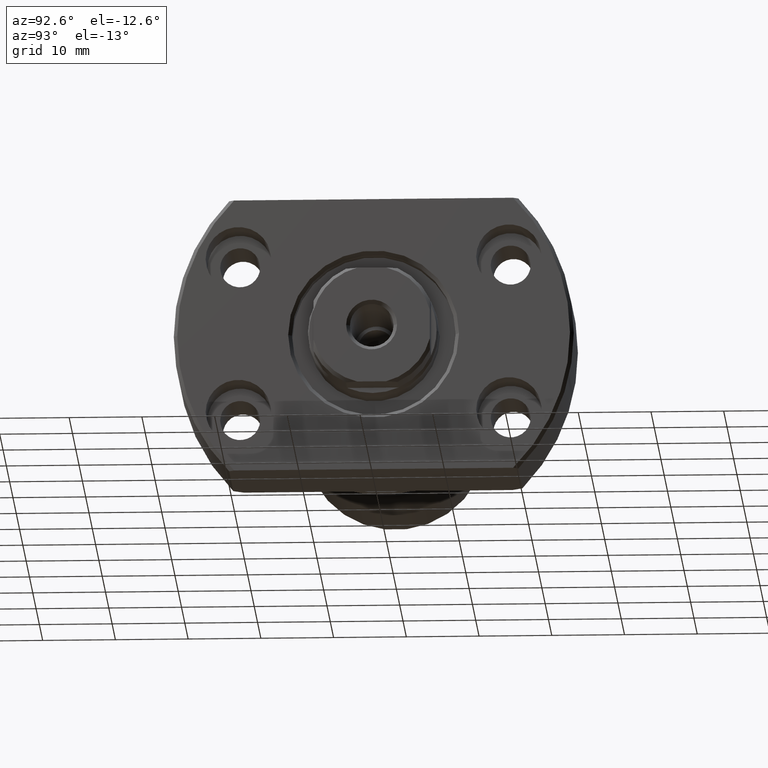
[diagram: clean part render]
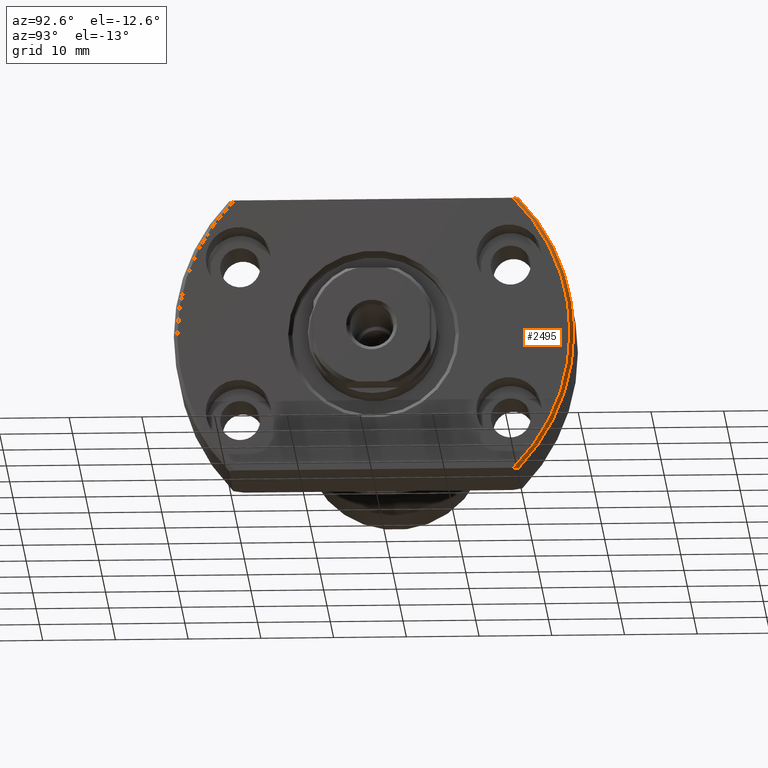
[diagram: same view with one face highlighted and labeled with its STEP entity id]
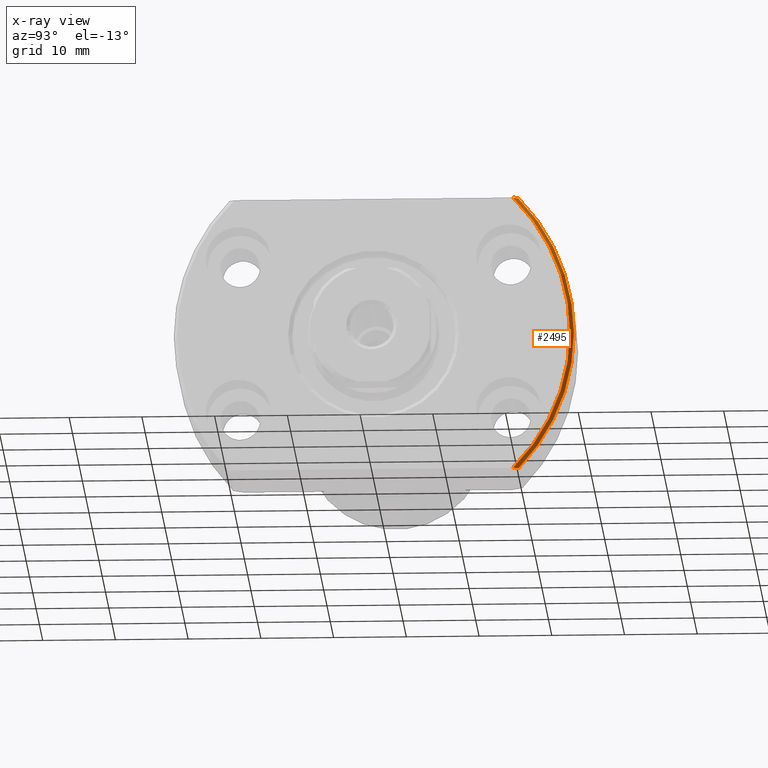
[diagram: x-ray of the same camera — body ghosted, the highlighted face saturated]
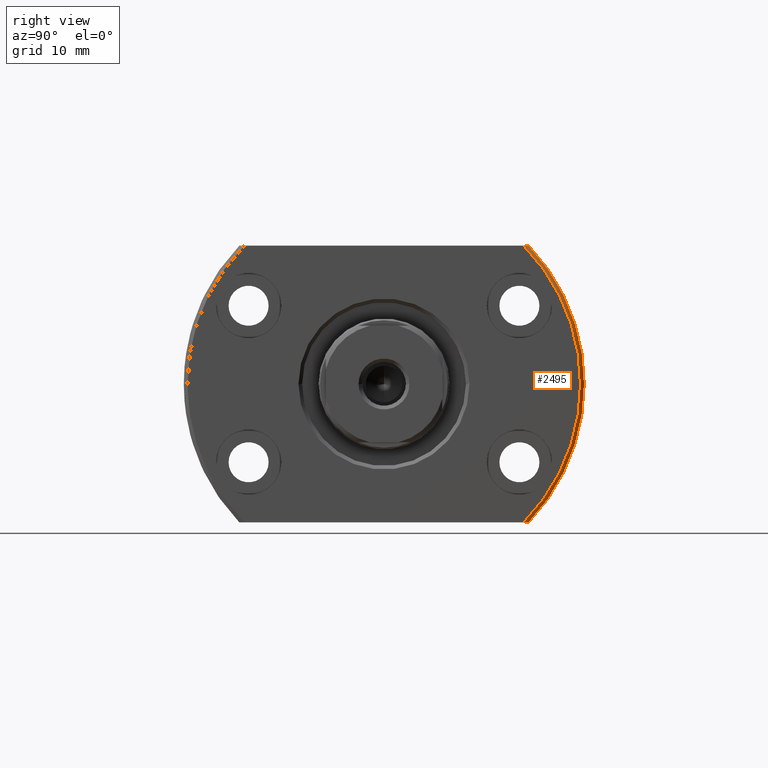
[diagram: same view with one face highlighted and labeled with its STEP entity id]
A machine part, auxiliary view. The second image highlights one B-rep face of the part: STEP entity #2495.
The next image is the same camera in x-ray: the body ghosted, the highlighted face saturated — about 0% of this face is hidden behind the body in this view.
A second angle (right view) of the same face is appended — the face is thin or edge-on in the first view.
In plain terms, the highlighted conical surface has half-angle 45 deg.
Its self-contained STEP definition (entity closure, byte-faithful):
#134 = ORIENTED_EDGE ( 'NONE', *, *, #408, .F. ) ;
#167 = EDGE_CURVE ( 'NONE', #272, #1427, #1365, .T. ) ;
#230 = CARTESIAN_POINT ( 'NONE',  ( 26.50000000000000355, 19.18332609325086580, -19.00000000000001066 ) ) ;
#243 = CARTESIAN_POINT ( 'NONE',  ( 26.16766778152495476, 19.64897098899369610, -19.00000000000001066 ) ) ;
#272 = VERTEX_POINT ( 'NONE', #1518 ) ;
#282 = CARTESIAN_POINT ( 'NONE',  ( 26.50000000000000355, 2.449293598294708386E-16, 0.000000000000000000 ) ) ;
#323 = EDGE_LOOP ( 'NONE', ( #134, #1448, #3042, #3219, #386 ) ) ;
#329 = CARTESIAN_POINT ( 'NONE',  ( 26.00000000000007461, 19.88089535207093306, -18.99999999999999645 ) ) ;
#386 = ORIENTED_EDGE ( 'NONE', *, *, #167, .T. ) ;
#408 = EDGE_CURVE ( 'NONE', #1931, #1427, #515, .T. ) ;
#515 = B_SPLINE_CURVE_WITH_KNOTS ( 'NONE', 3,
 ( #1820, #1535, #843, #2598 ),
 .UNSPECIFIED., .F., .F.,
 ( 4, 4 ),
 ( 0.07446973138748344545, 0.07533421896860403866 ),
 .UNSPECIFIED. ) ;
#531 = DIRECTION ( 'NONE',  ( 1.000000000000000000, 9.242617352055502386E-18, -0.000000000000000000 ) ) ;
#744 = DIRECTION ( 'NONE',  ( 0.000000000000000000, -1.000000000000000000, 0.000000000000000000 ) ) ;
#843 = CARTESIAN_POINT ( 'NONE',  ( 26.16766778152496187, 19.64897098899368899, 19.00000000000001066 ) ) ;
#1032 = AXIS2_PLACEMENT_3D ( 'NONE', #2007, #2203, #744 ) ;
#1075 = AXIS2_PLACEMENT_3D ( 'NONE', #2952, #2664, #1407 ) ;
#1154 = B_SPLINE_CURVE_WITH_KNOTS ( 'NONE', 3,
 ( #1292, #1550, #243, #2589 ),
 .UNSPECIFIED., .F., .F.,
 ( 4, 4 ),
 ( 0.07446973138748344545, 0.07533421896860405254 ),
 .UNSPECIFIED. ) ;
#1206 = CARTESIAN_POINT ( 'NONE',  ( 26.00000000000008882, 2.403080511534438786E-16, 0.000000000000000000 ) ) ;
#1292 = CARTESIAN_POINT ( 'NONE',  ( 26.50000000000000355, 19.18332609325086580, -19.00000000000001066 ) ) ;
#1299 = CARTESIAN_POINT ( 'NONE',  ( 26.00000000000007461, 19.88089535207092950, 19.00000000000000355 ) ) ;
#1365 = CIRCLE ( 'NONE', #1688, 27.49999999999991473 ) ;
#1407 = DIRECTION ( 'NONE',  ( 0.000000000000000000, 1.000000000000000000, 0.000000000000000000 ) ) ;
#1427 = VERTEX_POINT ( 'NONE', #1299 ) ;
#1448 = ORIENTED_EDGE ( 'NONE', *, *, #2592, .F. ) ;
#1518 = CARTESIAN_POINT ( 'NONE',  ( 26.00000000000008882, 27.49999999999991473, 0.000000000000000000 ) ) ;
#1535 = CARTESIAN_POINT ( 'NONE',  ( 26.33435831467464538, 19.41646217622441029, 19.00000000000001066 ) ) ;
#1550 = CARTESIAN_POINT ( 'NONE',  ( 26.33435831467464183, 19.41646217622441384, -19.00000000000001066 ) ) ;
#1565 = EDGE_CURVE ( 'NONE', #2648, #272, #2177, .T. ) ;
#1688 = AXIS2_PLACEMENT_3D ( 'NONE', #1206, #2669, #3169 ) ;
#1820 = CARTESIAN_POINT ( 'NONE',  ( 26.50000000000000355, 19.18332609325086935, 19.00000000000000711 ) ) ;
#1880 = EDGE_CURVE ( 'NONE', #3043, #2648, #1154, .T. ) ;
#1931 = VERTEX_POINT ( 'NONE', #3063 ) ;
#2007 = CARTESIAN_POINT ( 'NONE',  ( 26.00000000000008882, 2.403080511534438786E-16, 0.000000000000000000 ) ) ;
#2077 = AXIS2_PLACEMENT_3D ( 'NONE', #282, #531, #2510 ) ;
#2132 = CONICAL_SURFACE ( 'NONE', #1032, 27.49999999999991473, 0.7853981633974482790 ) ;
#2177 = CIRCLE ( 'NONE', #1075, 27.49999999999991473 ) ;
#2203 = DIRECTION ( 'NONE',  ( -1.000000000000000000, -9.242617352055502386E-18, 0.000000000000000000 ) ) ;
#2284 = CIRCLE ( 'NONE', #2077, 27.00000000000000000 ) ;
#2481 = FACE_OUTER_BOUND ( 'NONE', #323, .T. ) ;
#2495 = ADVANCED_FACE ( 'NONE', ( #2481 ), #2132, .T. ) ;
#2510 = DIRECTION ( 'NONE',  ( 0.000000000000000000, 1.000000000000000000, 0.000000000000000000 ) ) ;
#2589 = CARTESIAN_POINT ( 'NONE',  ( 26.00000000000007461, 19.88089535207093306, -18.99999999999999645 ) ) ;
#2592 = EDGE_CURVE ( 'NONE', #3043, #1931, #2284, .T. ) ;
#2598 = CARTESIAN_POINT ( 'NONE',  ( 26.00000000000007461, 19.88089535207092950, 19.00000000000000355 ) ) ;
#2648 = VERTEX_POINT ( 'NONE', #329 ) ;
#2664 = DIRECTION ( 'NONE',  ( 1.000000000000000000, 9.242617352055502386E-18, -0.000000000000000000 ) ) ;
#2669 = DIRECTION ( 'NONE',  ( 1.000000000000000000, 9.242617352055502386E-18, -0.000000000000000000 ) ) ;
#2952 = CARTESIAN_POINT ( 'NONE',  ( 26.00000000000008882, 2.403080511534438786E-16, 0.000000000000000000 ) ) ;
#3042 = ORIENTED_EDGE ( 'NONE', *, *, #1880, .T. ) ;
#3043 = VERTEX_POINT ( 'NONE', #230 ) ;
#3063 = CARTESIAN_POINT ( 'NONE',  ( 26.50000000000000355, 19.18332609325086935, 19.00000000000000711 ) ) ;
#3169 = DIRECTION ( 'NONE',  ( 0.000000000000000000, 1.000000000000000000, 0.000000000000000000 ) ) ;
#3219 = ORIENTED_EDGE ( 'NONE', *, *, #1565, .T. ) ;